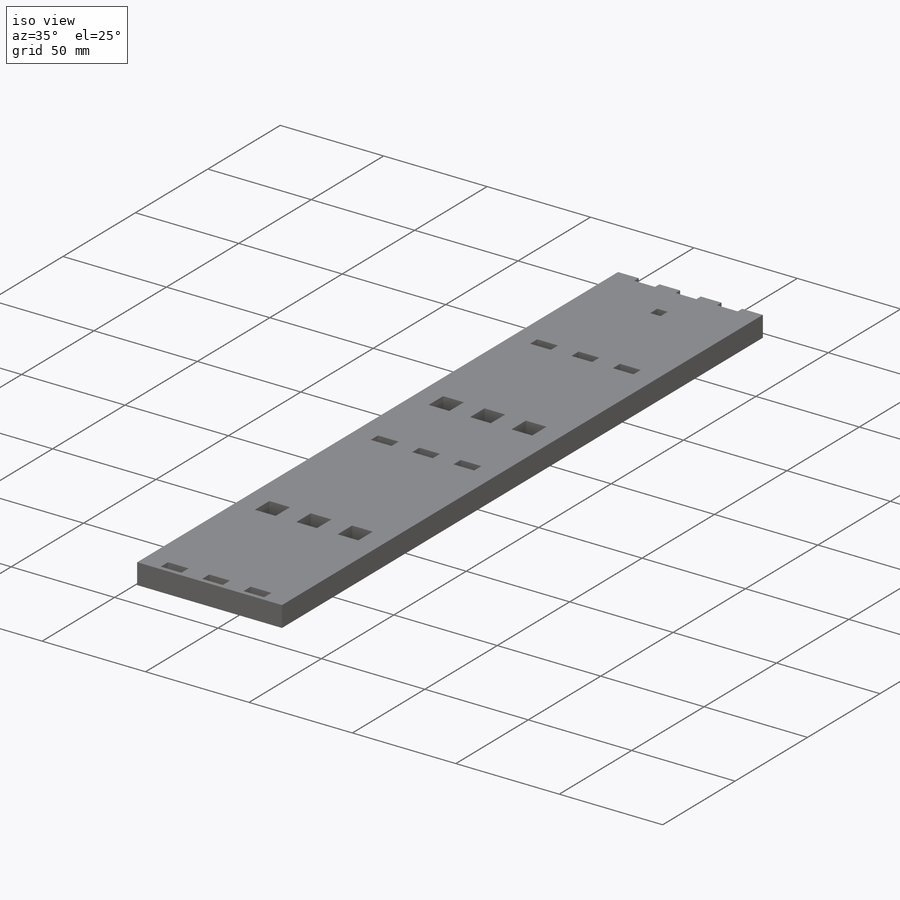
[diagram: iso view]
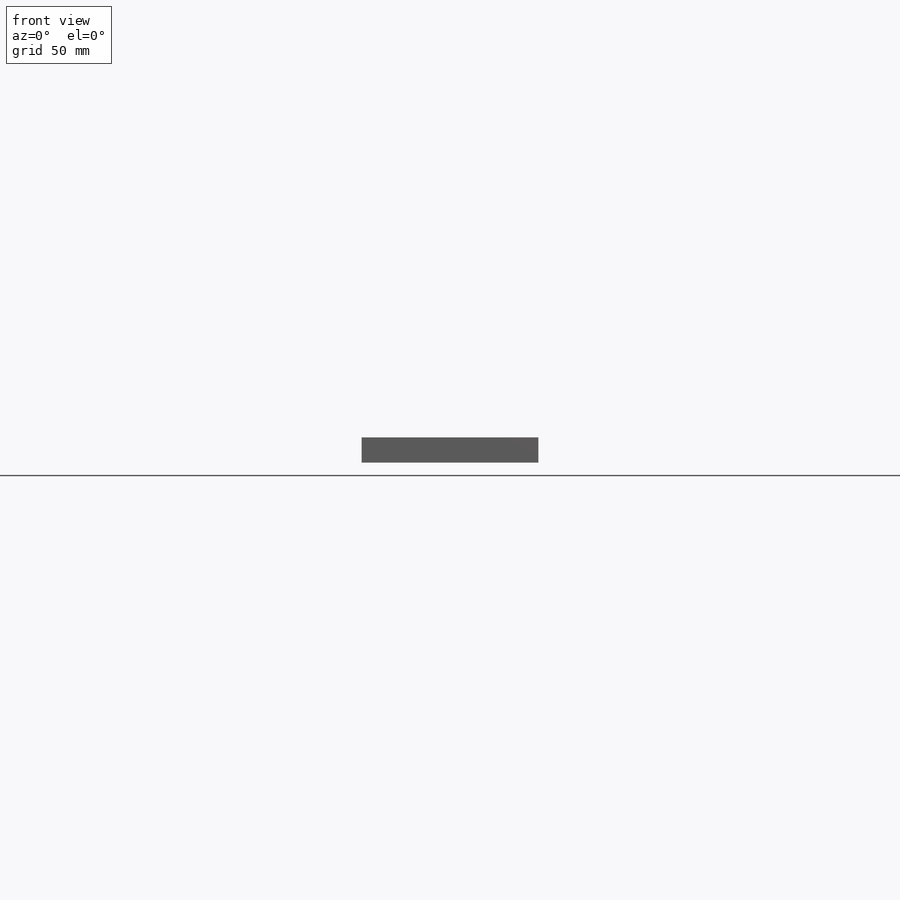
[diagram: front view]
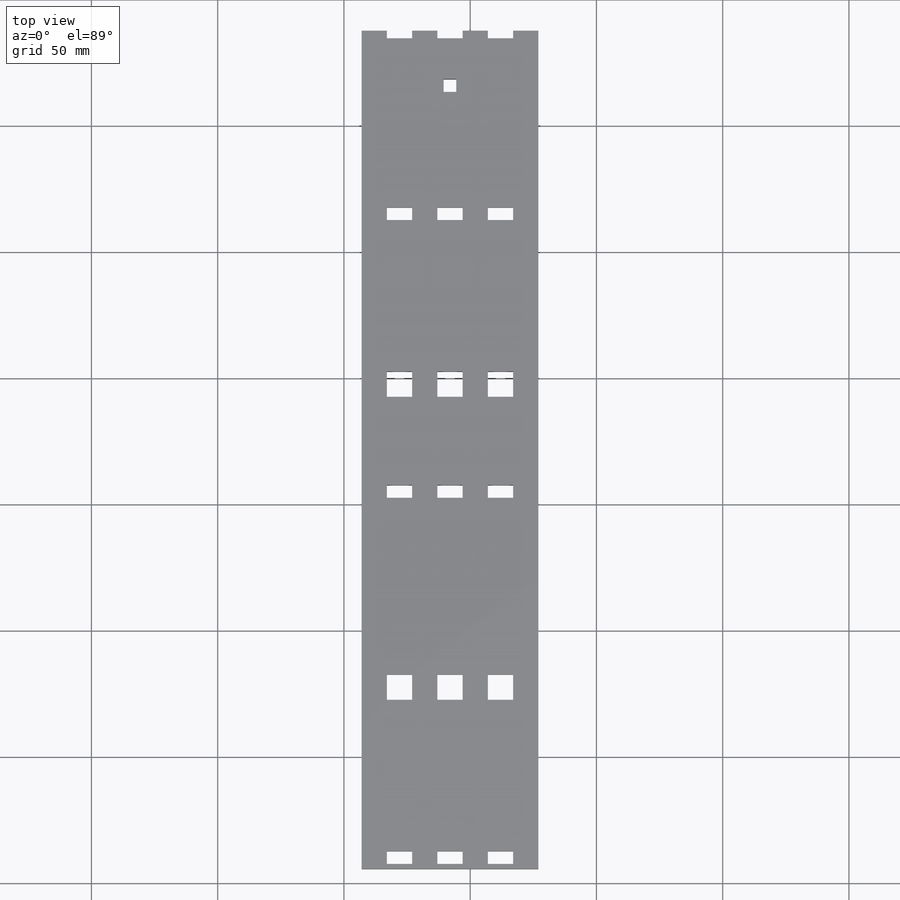
[diagram: top view]
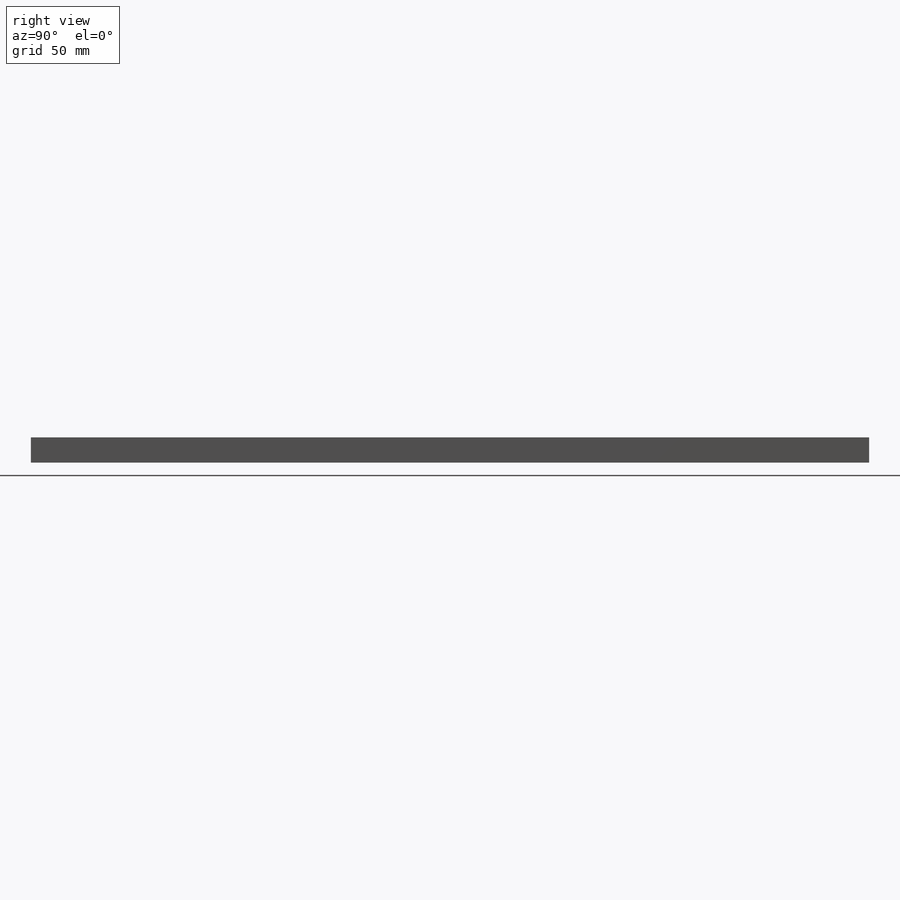
[diagram: right view]
SOLIDWORKS PART (.sldprt)
format: sldprt  version: not decoded by parser v0  size: 588,288 bytes
history: native  units: mm
features: sketch x8, cut_extrude x5, plane x3, extrude x3, pattern_linear x3, material x1 (+10 scaffold rows collapsed)
feature tree (33):
  scaffold x10  (default folders/planes/origin — collapsed)
  material  "Balsa"
  plane  "Plan de face"
  plane  "Plan de dessus"
  plane  "Plan de droite"
  sketch  "Esquisse1"  dims[D1=70.0mm D2=332.0mm]
  extrude  "Boss.-Extru.1"  Depth=10mm
  sketch  "Esquisse2"  dims[c1.D1=10.0mm c1.D2=10.0mm c1.D3=60.0mm c1.D4=10.0mm c1.D5=140.0mm c1.D6=5.0mm c1.D7=10.0mm c1.D8=10.0mm c1.D9=10.0mm c1.D10=10.0mm c1.D11=10.0mm c1.D12=180.0mm c1.D13=60.0mm c1.D14=5.0mm c1.D15=10.0mm c1.D16=0.0mm c2.D13=260.0mm]
  cut_extrude  "Enlèv. mat.-Extru.1"  Depth=10mm
  pattern_linear  "Répétition linéaire1"  Count1=3 Count2=1 Spacing1=20mm Spacing2=10mm
  sketch  "Esquisse4"  dims[D1=10.0mm D2=3.0mm D3=5.0mm D4=10.0mm D5=0.0mm D6=0.0mm D7=0.0mm D8=0.0mm]
  extrude  "Boss.-Extru.2"  Depth=10mm
  pattern_linear  "Répétition linéaire2"  Count1=4 Count2=1 Spacing1=20mm Spacing2=10mm
  sketch  "Esquisse12"  dims[c1.D1=260.0mm c1.D2=5.0mm c1.D3=10.0mm c2.D1=250.0mm c2.D4=10.0mm]
  cut_extrude  "Enlèv. mat.-Extru.7"  Depth=10mm
  pattern_linear  "Répétition linéaire5"  Count1=3 Count2=1 Spacing1=20mm Spacing2=10mm
  sketch  "Esquisse14"  dims[D1=70.0mm D2=2.0mm]
  extrude  "Boss.-Extru.4"  Depth=10mm
  sketch  "Esquisse17"
  cut_extrude  "Enlèv. mat.-Extru.10"  Depth=10mm
  sketch  "Esquisse18"
  cut_extrude  "Enlèv. mat.-Extru.11"  Depth=10mm
  sketch  "Esquisse19"  dims[D1=16.23mm D2=5.0mm D3=5.0mm D4=32.5mm D5=5.0mm]
  cut_extrude  "Enlèv. mat.-Extru.12"  Depth=10mm
decode coverage: 17 of 19 modeling features carry decoded parameters
note: suppression state not decoded; provenance and decode notes live in map.json
